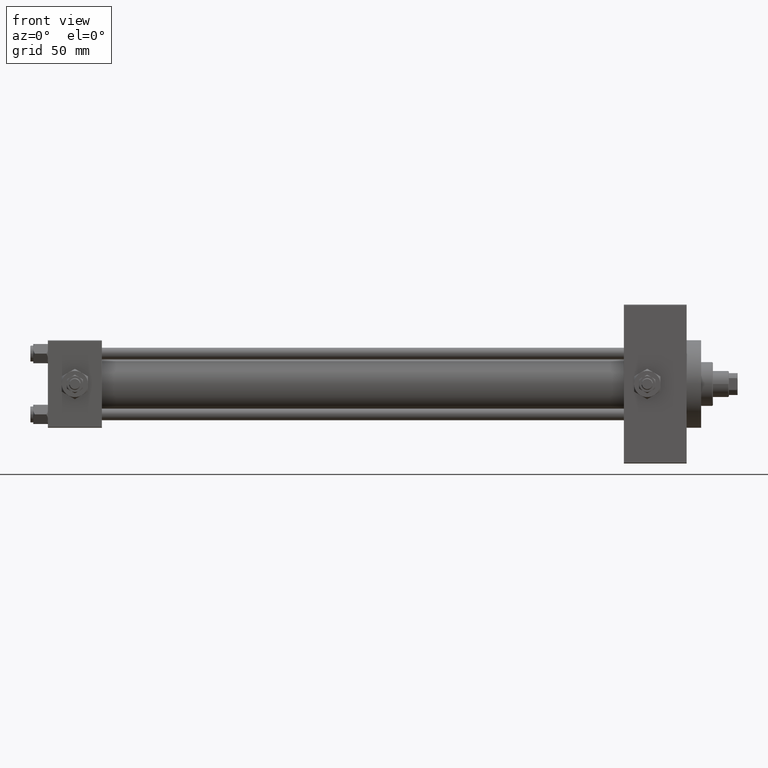
[diagram: clean part render]
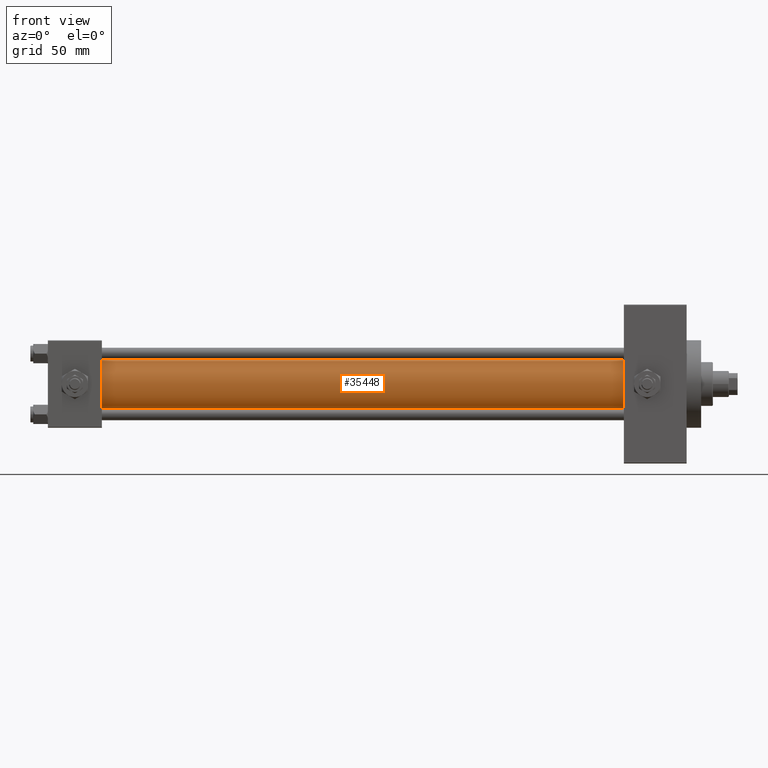
[diagram: same view with one face highlighted and labeled with its STEP entity id]
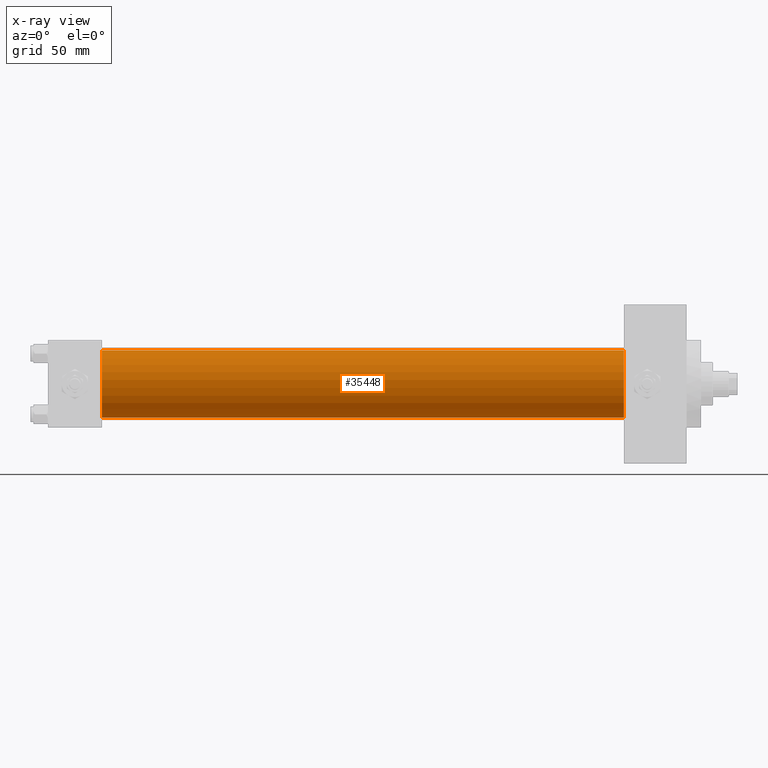
[diagram: x-ray of the same camera — body ghosted, the highlighted face saturated]
A machine part, front view. The second image highlights one B-rep face of the part: STEP entity #35448.
The next image is the same camera in x-ray: the body ghosted, the highlighted face saturated — about 0% of this face is hidden behind the body in this view.
In plain terms, the highlighted cylindrical surface (edge-blend (fillet) strip) has radius 23 mm, axis along (-1, -0, -0).
Its self-contained STEP definition (entity closure, byte-faithful):
#418 = ORIENTED_EDGE ( 'NONE', *, *, #44129, .T. ) ;
#643 = LINE ( 'NONE', #25409, #45511 ) ;
#886 = EDGE_CURVE ( 'NONE', #29024, #21982, #37043, .T. ) ;
#1767 = DIRECTION ( 'NONE',  ( 0.000000000000000000, 0.000000000000000000, 1.000000000000000000 ) ) ;
#1855 = CARTESIAN_POINT ( 'NONE',  ( 394.9999999999999432, 2.146024240737012665E-16, -23.00000000000000000 ) ) ;
#2589 = CARTESIAN_POINT ( 'NONE',  ( 36.99999999999997868, -2.602085213965210642E-15, 23.00000000000000000 ) ) ;
#2856 = ORIENTED_EDGE ( 'NONE', *, *, #886, .T. ) ;
#3024 = VERTEX_POINT ( 'NONE', #21844 ) ;
#3297 = DIRECTION ( 'NONE',  ( -1.000000000000000000, -0.000000000000000000, -0.000000000000000000 ) ) ;
#5743 = ORIENTED_EDGE ( 'NONE', *, *, #27413, .F. ) ;
#6303 = FACE_OUTER_BOUND ( 'NONE', #8381, .T. ) ;
#7046 = DIRECTION ( 'NONE',  ( 0.000000000000000000, 0.000000000000000000, 1.000000000000000000 ) ) ;
#8381 = EDGE_LOOP ( 'NONE', ( #5743, #43517, #418, #2856 ) ) ;
#9254 = VECTOR ( 'NONE', #3297, 1000.000000000000000 ) ;
#12283 = DIRECTION ( 'NONE',  ( 1.000000000000000000, -0.000000000000000000, 0.000000000000000000 ) ) ;
#14172 = CARTESIAN_POINT ( 'NONE',  ( 394.9999999999999432, -2.602085213965210642E-15, 0.000000000000000000 ) ) ;
#14272 = CARTESIAN_POINT ( 'NONE',  ( 394.9999999999999432, -2.602085213965210642E-15, 23.00000000000000000 ) ) ;
#14532 = DIRECTION ( 'NONE',  ( -1.000000000000000000, -0.000000000000000000, -0.000000000000000000 ) ) ;
#14774 = CYLINDRICAL_SURFACE ( 'NONE', #25794, 23.00000000000000000 ) ;
#16385 = CIRCLE ( 'NONE', #46653, 23.00000000000000000 ) ;
#16738 = CARTESIAN_POINT ( 'NONE',  ( 36.99999999999997868, 2.146024240737012665E-16, -23.00000000000000000 ) ) ;
#21750 = LINE ( 'NONE', #14272, #9254 ) ;
#21844 = CARTESIAN_POINT ( 'NONE',  ( 394.9999999999999432, -2.602085213965210642E-15, 23.00000000000000000 ) ) ;
#21918 = DIRECTION ( 'NONE',  ( -1.000000000000000000, -0.000000000000000000, -0.000000000000000000 ) ) ;
#21982 = VERTEX_POINT ( 'NONE', #16738 ) ;
#25142 = DIRECTION ( 'NONE',  ( 1.000000000000000000, 0.000000000000000000, 0.000000000000000000 ) ) ;
#25409 = CARTESIAN_POINT ( 'NONE',  ( 394.9999999999999432, 2.146024240737012665E-16, -23.00000000000000000 ) ) ;
#25794 = AXIS2_PLACEMENT_3D ( 'NONE', #37698, #14532, #7046 ) ;
#27413 = EDGE_CURVE ( 'NONE', #28992, #21982, #643, .T. ) ;
#28992 = VERTEX_POINT ( 'NONE', #1855 ) ;
#29024 = VERTEX_POINT ( 'NONE', #2589 ) ;
#33890 = AXIS2_PLACEMENT_3D ( 'NONE', #39908, #12283, #1767 ) ;
#35448 = ADVANCED_FACE ( 'NONE', ( #6303 ), #14774, .T. ) ;
#37043 = CIRCLE ( 'NONE', #33890, 23.00000000000000000 ) ;
#37698 = CARTESIAN_POINT ( 'NONE',  ( 394.9999999999999432, -2.602085213965210642E-15, 0.000000000000000000 ) ) ;
#39908 = CARTESIAN_POINT ( 'NONE',  ( 36.99999999999997868, -2.602085213965210642E-15, 0.000000000000000000 ) ) ;
#40096 = DIRECTION ( 'NONE',  ( 0.000000000000000000, 0.000000000000000000, -1.000000000000000000 ) ) ;
#40402 = EDGE_CURVE ( 'NONE', #3024, #28992, #16385, .T. ) ;
#43517 = ORIENTED_EDGE ( 'NONE', *, *, #40402, .F. ) ;
#44129 = EDGE_CURVE ( 'NONE', #3024, #29024, #21750, .T. ) ;
#45511 = VECTOR ( 'NONE', #21918, 1000.000000000000000 ) ;
#46653 = AXIS2_PLACEMENT_3D ( 'NONE', #14172, #25142, #40096 ) ;